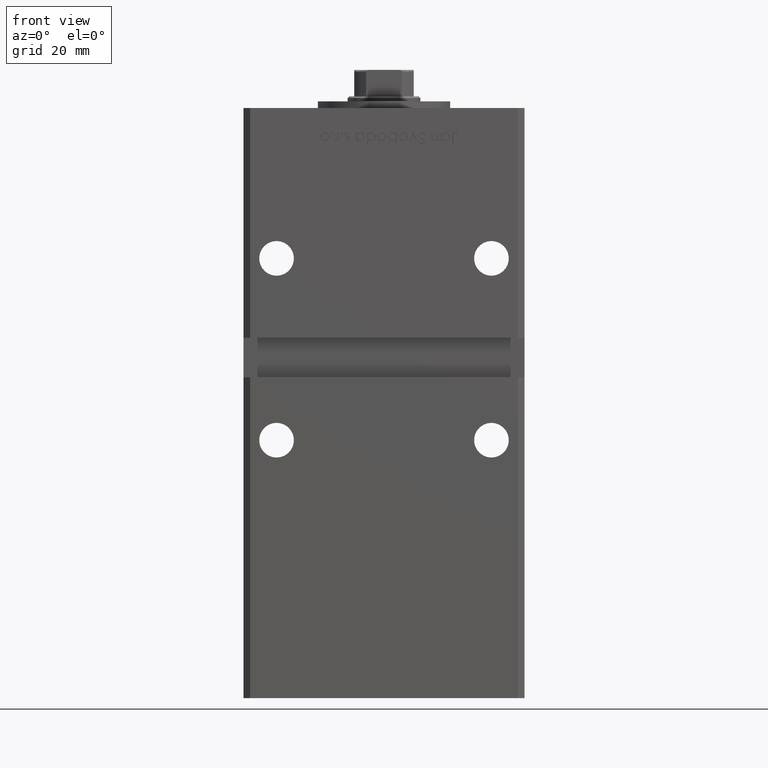
[diagram: clean part render]
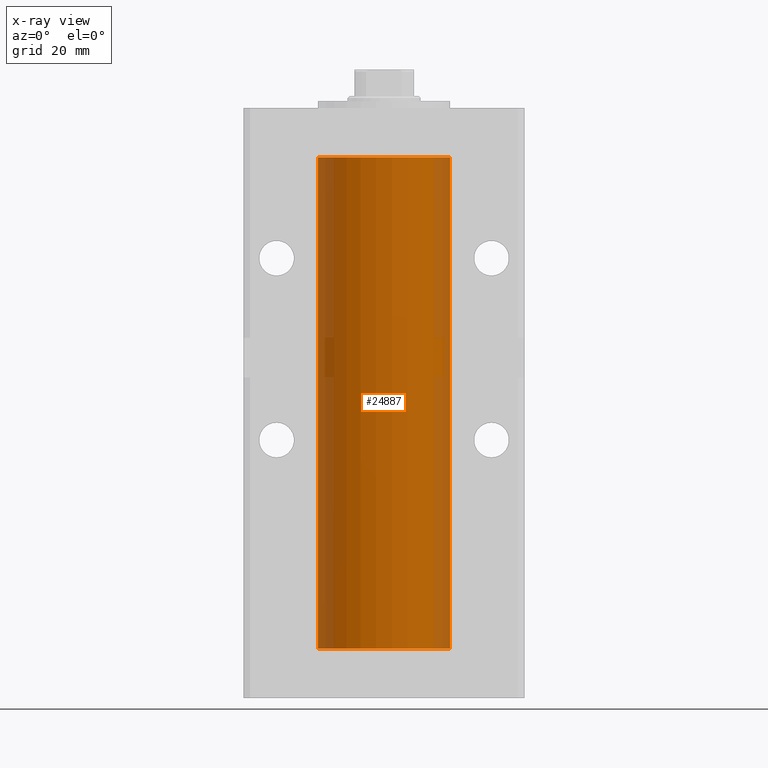
[diagram: x-ray — body ghosted, one internal face saturated and labeled with its STEP entity id]
A machine part, front view, then the same camera in x-ray: the body is ghosted and one INTERNAL B-rep face — a face not visible from any outside direction — is saturated and labeled: STEP entity #24887.
In plain terms, the highlighted cylindrical surface (partial cylindrical patch) has radius 20 mm, axis along (-0, -0, -1).
Its self-contained STEP definition (entity closure, byte-faithful):
#775 = EDGE_CURVE ( 'NONE', #3438, #26367, #21951, .T. ) ;
#1701 = EDGE_CURVE ( 'NONE', #3438, #22313, #24184, .T. ) ;
#2466 = DIRECTION ( 'NONE',  ( -0.000000000000000000, -0.000000000000000000, -1.000000000000000000 ) ) ;
#3401 = EDGE_LOOP ( 'NONE', ( #24259, #8115, #51975, #51032 ) ) ;
#3438 = VERTEX_POINT ( 'NONE', #17841 ) ;
#4746 = AXIS2_PLACEMENT_3D ( 'NONE', #35686, #42471, #22601 ) ;
#5484 = VECTOR ( 'NONE', #2466, 1000.000000000000000 ) ;
#8115 = ORIENTED_EDGE ( 'NONE', *, *, #26589, .T. ) ;
#9049 = CIRCLE ( 'NONE', #42487, 20.00000000000000000 ) ;
#9523 = CARTESIAN_POINT ( 'NONE',  ( 0.000000000000000000, 0.000000000000000000, 148.5000000000000000 ) ) ;
#10271 = LINE ( 'NONE', #51067, #5484 ) ;
#14335 = DIRECTION ( 'NONE',  ( 1.000000000000000000, 0.000000000000000000, 0.000000000000000000 ) ) ;
#17841 = CARTESIAN_POINT ( 'NONE',  ( -20.00000000000000000, 0.000000000000000000, 148.5000000000000000 ) ) ;
#20272 = VECTOR ( 'NONE', #27211, 1000.000000000000000 ) ;
#21951 = CIRCLE ( 'NONE', #40820, 20.00000000000000000 ) ;
#22313 = VERTEX_POINT ( 'NONE', #51486 ) ;
#22601 = DIRECTION ( 'NONE',  ( -1.000000000000000000, 0.000000000000000000, 0.000000000000000000 ) ) ;
#22909 = CARTESIAN_POINT ( 'NONE',  ( -20.00000000000000000, 0.000000000000000000, 148.5000000000000000 ) ) ;
#23541 = DIRECTION ( 'NONE',  ( 1.000000000000000000, 0.000000000000000000, 0.000000000000000000 ) ) ;
#24184 = LINE ( 'NONE', #22909, #20272 ) ;
#24259 = ORIENTED_EDGE ( 'NONE', *, *, #775, .T. ) ;
#24887 = ADVANCED_FACE ( 'NONE', ( #30144 ), #31662, .F. ) ;
#25197 = EDGE_CURVE ( 'NONE', #22313, #51675, #9049, .T. ) ;
#25905 = DIRECTION ( 'NONE',  ( -0.000000000000000000, 0.000000000000000000, 1.000000000000000000 ) ) ;
#26367 = VERTEX_POINT ( 'NONE', #52718 ) ;
#26589 = EDGE_CURVE ( 'NONE', #26367, #51675, #10271, .T. ) ;
#27211 = DIRECTION ( 'NONE',  ( -0.000000000000000000, -0.000000000000000000, -1.000000000000000000 ) ) ;
#27580 = CARTESIAN_POINT ( 'NONE',  ( 0.000000000000000000, 0.000000000000000000, 0.000000000000000000 ) ) ;
#30144 = FACE_OUTER_BOUND ( 'NONE', #3401, .T. ) ;
#31662 = CYLINDRICAL_SURFACE ( 'NONE', #4746, 20.00000000000000000 ) ;
#35686 = CARTESIAN_POINT ( 'NONE',  ( 0.000000000000000000, 0.000000000000000000, 148.5000000000000000 ) ) ;
#40820 = AXIS2_PLACEMENT_3D ( 'NONE', #9523, #25905, #14335 ) ;
#42471 = DIRECTION ( 'NONE',  ( -0.000000000000000000, -0.000000000000000000, -1.000000000000000000 ) ) ;
#42487 = AXIS2_PLACEMENT_3D ( 'NONE', #27580, #43940, #23541 ) ;
#43940 = DIRECTION ( 'NONE',  ( -0.000000000000000000, 0.000000000000000000, 1.000000000000000000 ) ) ;
#45024 = CARTESIAN_POINT ( 'NONE',  ( 20.00000000000000000, 2.449293598294706513E-15, 0.000000000000000000 ) ) ;
#51032 = ORIENTED_EDGE ( 'NONE', *, *, #1701, .F. ) ;
#51067 = CARTESIAN_POINT ( 'NONE',  ( 20.00000000000000000, 2.449293598294706513E-15, 148.5000000000000000 ) ) ;
#51486 = CARTESIAN_POINT ( 'NONE',  ( -20.00000000000000000, 0.000000000000000000, 0.000000000000000000 ) ) ;
#51675 = VERTEX_POINT ( 'NONE', #45024 ) ;
#51975 = ORIENTED_EDGE ( 'NONE', *, *, #25197, .F. ) ;
#52718 = CARTESIAN_POINT ( 'NONE',  ( 20.00000000000000000, 2.449293598294706513E-15, 148.5000000000000000 ) ) ;